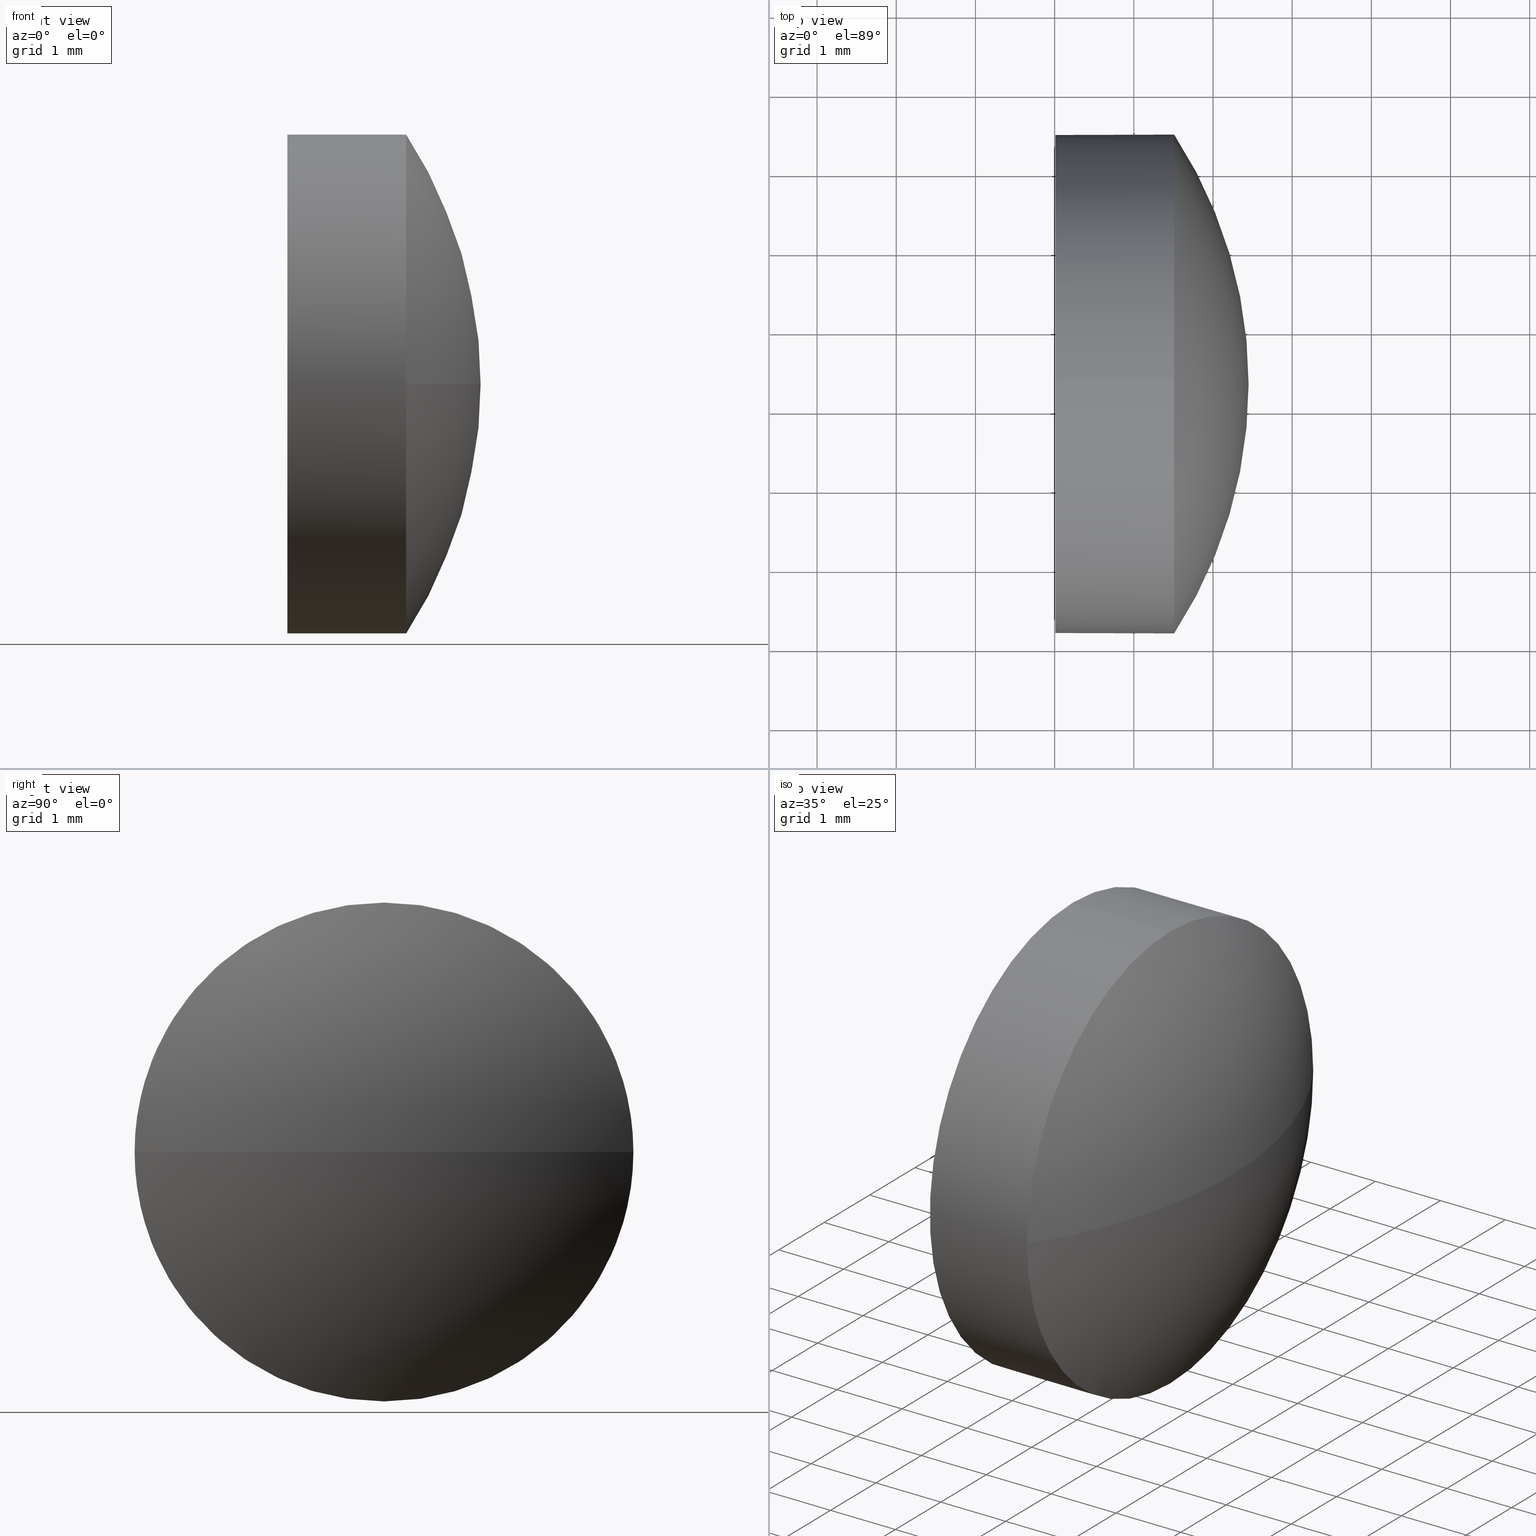
[diagram: canonical four-view strip — front | top / right | iso, engineering-drawing reading convention]
A machine part, canonical four-view strip (front | top / right | iso — engineering-drawing reading convention). The complete STEP part file that produces these views, byte-faithful:
ISO-10303-21;
HEADER;
FILE_DESCRIPTION (( 'STEP AP214' ),
    '1' );
FILE_NAME ('100350.STEP',
    '2019-06-03T03:22:07',
    ( '' ),
    ( '' ),
    'SwSTEP 2.0',
    'SolidWorks 2016',
    '' );
FILE_SCHEMA (( 'AUTOMOTIVE_DESIGN' ));
ENDSEC;

DATA;
#1 = MANIFOLD_SOLID_BREP ( '��ת2', #51 ) ;
#2 = AXIS2_PLACEMENT_3D ( 'NONE', #59, #117, #74 ) ;
#3 = SURFACE_SIDE_STYLE ('',( #111 ) ) ;
#4 = CARTESIAN_POINT ( 'NONE',  ( 419.5098370035601100, -21.67740160652397200, -3.149999999999999900 ) ) ;
#5 = VERTEX_POINT ( 'NONE', #22 ) ;
#6 = CARTESIAN_POINT ( 'NONE',  ( 418.0098370035601100, -21.67740160652397200, 3.149999999999999900 ) ) ;
#7 = ORIENTED_EDGE ( 'NONE', *, *, #37, .F. ) ;
#8 = CARTESIAN_POINT ( 'NONE',  ( 419.5098370035601100, -21.67740160652397200, 0.0000000000000000000 ) ) ;
#9 = SHAPE_DEFINITION_REPRESENTATION ( #54, #82 ) ;
#10 = CARTESIAN_POINT ( 'NONE',  ( 418.0098370035601100, -21.67740160652397200, -3.149999999999999900 ) ) ;
#11 = PRODUCT_CONTEXT ( 'NONE', #185, 'mechanical' ) ;
#12 = DIRECTION ( 'NONE',  ( 0.0000000000000000000, 0.0000000000000000000, 1.000000000000000000 ) ) ;
#13 = ORIENTED_EDGE ( 'NONE', *, *, #79, .T. ) ;
#14 = LINE ( 'NONE', #110, #163 ) ;
#15 = AXIS2_PLACEMENT_3D ( 'NONE', #26, #31, #116 ) ;
#16 = COLOUR_RGB ( '',1.000000000000000000, 1.000000000000000000, 1.000000000000000000 ) ;
#17 = EDGE_LOOP ( 'NONE', ( #60, #161, #169, #7 ) ) ;
#18 = CIRCLE ( 'NONE', #146, 3.149999999999999900 ) ;
#19 = EDGE_CURVE ( 'NONE', #40, #5, #149, .T. ) ;
#20 = AXIS2_PLACEMENT_3D ( 'NONE', #43, #147, #115 ) ;
#21 = FACE_OUTER_BOUND ( 'NONE', #29, .T. ) ;
#22 = CARTESIAN_POINT ( 'NONE',  ( 419.5098370035601100, -18.52740160652397700, 0.0000000000000000000 ) ) ;
#23 =( NAMED_UNIT ( * ) SI_UNIT ( $, .STERADIAN. ) SOLID_ANGLE_UNIT ( ) );
#24 =( LENGTH_UNIT ( ) NAMED_UNIT ( * ) SI_UNIT ( .MILLI., .METRE. ) );
#25 = CYLINDRICAL_SURFACE ( 'NONE', #126, 3.149999999999999900 ) ;
#26 = CARTESIAN_POINT ( 'NONE',  ( 418.0098370035601100, -21.67740160652397200, 0.0000000000000000000 ) ) ;
#27 = DIRECTION ( 'NONE',  ( 1.000000000000000000, 0.0000000000000000000, 0.0000000000000000000 ) ) ;
#28 = EDGE_CURVE ( 'NONE', #94, #36, #139, .T. ) ;
#29 = EDGE_LOOP ( 'NONE', ( #91, #13, #144, #128 ) ) ;
#30 = DIRECTION ( 'NONE',  ( 0.0000000000000000000, 0.0000000000000000000, 1.000000000000000000 ) ) ;
#31 = DIRECTION ( 'NONE',  ( 1.000000000000000000, 0.0000000000000000000, 0.0000000000000000000 ) ) ;
#32 = PRODUCT_RELATED_PRODUCT_CATEGORY ( 'part', '', ( #132 ) ) ;
#33 = MECHANICAL_DESIGN_GEOMETRIC_PRESENTATION_REPRESENTATION (  '', ( #171 ), #96 ) ;
#34 = ADVANCED_FACE ( 'NONE', ( #118 ), #55, .T. ) ;
#35 = LINE ( 'NONE', #89, #63 ) ;
#36 = VERTEX_POINT ( 'NONE', #6 ) ;
#37 = EDGE_CURVE ( 'NONE', #97, #107, #122, .T. ) ;
#38 = CARTESIAN_POINT ( 'NONE',  ( 418.0098370035601100, -21.67740160652397200, 0.0000000000000000000 ) ) ;
#39 =( NAMED_UNIT ( * ) PLANE_ANGLE_UNIT ( ) SI_UNIT ( $, .RADIAN. ) );
#40 = VERTEX_POINT ( 'NONE', #178 ) ;
#41 = CARTESIAN_POINT ( 'NONE',  ( 417.1491989148111100, -21.67740160652397200, 0.0000000000000000000 ) ) ;
#42 = CARTESIAN_POINT ( 'NONE',  ( 419.5098370035601100, -21.67740160652397200, 0.0000000000000000000 ) ) ;
#43 = CARTESIAN_POINT ( 'NONE',  ( 419.5098370035601100, -21.67740160652397200, 0.0000000000000000000 ) ) ;
#44 = DIRECTION ( 'NONE',  ( -1.000000000000000000, -0.0000000000000000000, -0.0000000000000000000 ) ) ;
#45 = SURFACE_STYLE_USAGE ( .BOTH. , #184 ) ;
#46 = EDGE_CURVE ( 'NONE', #107, #36, #14, .T. ) ;
#47 = ORIENTED_EDGE ( 'NONE', *, *, #95, .T. ) ;
#48 = CIRCLE ( 'NONE', #2, 5.747925531914894700 ) ;
#49 = EDGE_CURVE ( 'NONE', #36, #94, #18, .T. ) ;
#50 = ORIENTED_EDGE ( 'NONE', *, *, #46, .T. ) ;
#51 = CLOSED_SHELL ( 'NONE', ( #34, #162, #78, #124, #125 ) ) ;
#52 = EDGE_CURVE ( 'NONE', #107, #5, #176, .T. ) ;
#53 = DIRECTION ( 'NONE',  ( -1.000000000000000000, -0.0000000000000000000, -0.0000000000000000000 ) ) ;
#54 = PRODUCT_DEFINITION_SHAPE ( 'NONE', 'NONE',  #164 ) ;
#55 = CYLINDRICAL_SURFACE ( 'NONE', #150, 3.149999999999999900 ) ;
#56 = DIRECTION ( 'NONE',  ( 1.000000000000000000, 0.0000000000000000000, 0.0000000000000000000 ) ) ;
#57 = FACE_OUTER_BOUND ( 'NONE', #179, .T. ) ;
#58 = DIRECTION ( 'NONE',  ( -0.0000000000000000000, 0.0000000000000000000, -1.000000000000000000 ) ) ;
#59 = CARTESIAN_POINT ( 'NONE',  ( 414.7019114716451900, -21.67740160652399000, 0.0000000000000000000 ) ) ;
#60 = ORIENTED_EDGE ( 'NONE', *, *, #79, .F. ) ;
#61 = UNCERTAINTY_MEASURE_WITH_UNIT (LENGTH_MEASURE( 1.000000000000000100E-005 ), #70, 'distance_accuracy_value', 'NONE');
#62 = ORIENTED_EDGE ( 'NONE', *, *, #52, .T. ) ;
#63 = VECTOR ( 'NONE', #44, 1000.000000000000000 ) ;
#64 = PRODUCT_DEFINITION_FORMATION_WITH_SPECIFIED_SOURCE ( '�κ�', '', #132, .NOT_KNOWN. ) ;
#65 = ORIENTED_EDGE ( 'NONE', *, *, #130, .T. ) ;
#66 = SPHERICAL_SURFACE ( 'NONE', #121, 5.747925531914894700 ) ;
#67 = EDGE_CURVE ( 'NONE', #69, #97, #75, .T. ) ;
#68 = DIRECTION ( 'NONE',  ( -1.000000000000000000, -0.0000000000000000000, -0.0000000000000000000 ) ) ;
#69 = VERTEX_POINT ( 'NONE', #4 ) ;
#70 =( LENGTH_UNIT ( ) NAMED_UNIT ( * ) SI_UNIT ( .MILLI., .METRE. ) );
#71 = DIRECTION ( 'NONE',  ( 0.0000000000000000000, 0.0000000000000000000, 1.000000000000000000 ) ) ;
#72 = DIRECTION ( 'NONE',  ( -1.000000000000000000, -0.0000000000000000000, -0.0000000000000000000 ) ) ;
#73 =( LENGTH_UNIT ( ) NAMED_UNIT ( * ) SI_UNIT ( .MILLI., .METRE. ) );
#74 = DIRECTION ( 'NONE',  ( 0.0000000000000000000, 1.000000000000000000, 1.224646799147353500E-016 ) ) ;
#75 = CIRCLE ( 'NONE', #177, 3.149999999999999900 ) ;
#76 = DIRECTION ( 'NONE',  ( 0.0000000000000000000, 1.000000000000000000, 0.0000000000000000000 ) ) ;
#77 = CARTESIAN_POINT ( 'NONE',  ( 0.0000000000000000000, 0.0000000000000000000, 0.0000000000000000000 ) ) ;
#78 = ADVANCED_FACE ( 'NONE', ( #165 ), #105, .T. ) ;
#79 = EDGE_CURVE ( 'NONE', #40, #97, #48, .T. ) ;
#80 = PRODUCT_DEFINITION_CONTEXT ( 'detailed design', #101, 'design' ) ;
#81 = ORIENTED_EDGE ( 'NONE', *, *, #46, .F. ) ;
#82 = ADVANCED_BREP_SHAPE_REPRESENTATION ( '100350', ( #1, #174 ), #114 ) ;
#83 = DIRECTION ( 'NONE',  ( -0.0000000000000000000, 0.0000000000000000000, 1.000000000000000000 ) ) ;
#84 = DIRECTION ( 'NONE',  ( -1.000000000000000000, -0.0000000000000000000, -0.0000000000000000000 ) ) ;
#85 = DIRECTION ( 'NONE',  ( 0.0000000000000000000, 0.0000000000000000000, 1.000000000000000000 ) ) ;
#86 =( NAMED_UNIT ( * ) SI_UNIT ( $, .STERADIAN. ) SOLID_ANGLE_UNIT ( ) );
#87 = DIRECTION ( 'NONE',  ( -1.000000000000000000, -0.0000000000000000000, -0.0000000000000000000 ) ) ;
#88 = PRESENTATION_LAYER_ASSIGNMENT (  '', '', ( #171 ) ) ;
#89 = CARTESIAN_POINT ( 'NONE',  ( 417.1491989148111100, -21.67740160652397200, -3.149999999999999900 ) ) ;
#90 = ORIENTED_EDGE ( 'NONE', *, *, #28, .T. ) ;
#91 = ORIENTED_EDGE ( 'NONE', *, *, #19, .F. ) ;
#92 = AXIS2_PLACEMENT_3D ( 'NONE', #129, #83, #56 ) ;
#93 = SURFACE_STYLE_FILL_AREA ( #158 ) ;
#94 = VERTEX_POINT ( 'NONE', #10 ) ;
#95 = EDGE_CURVE ( 'NONE', #5, #69, #168, .T. ) ;
#96 =( GEOMETRIC_REPRESENTATION_CONTEXT ( 3 ) GLOBAL_UNCERTAINTY_ASSIGNED_CONTEXT ( ( #61 ) ) GLOBAL_UNIT_ASSIGNED_CONTEXT ( ( #70, #39, #23 ) ) REPRESENTATION_CONTEXT ( 'NONE', 'WORKASPACE' ) );
#97 = VERTEX_POINT ( 'NONE', #155 ) ;
#98 = EDGE_LOOP ( 'NONE', ( #47, #65, #186, #81, #62 ) ) ;
#99 = DIRECTION ( 'NONE',  ( -1.000000000000000000, -0.0000000000000000000, -0.0000000000000000000 ) ) ;
#100 = FILL_AREA_STYLE_COLOUR ( '', #113 ) ;
#101 = APPLICATION_CONTEXT ( 'automotive_design' ) ;
#102 = DIRECTION ( 'NONE',  ( 0.0000000000000000000, 1.000000000000000000, 0.0000000000000000000 ) ) ;
#103 = CARTESIAN_POINT ( 'NONE',  ( 417.1491989148111100, -21.67740160652397200, 0.0000000000000000000 ) ) ;
#104 = APPLICATION_PROTOCOL_DEFINITION ( 'draft international standard', 'automotive_design', 1998, #185 ) ;
#105 = SPHERICAL_SURFACE ( 'NONE', #106, 5.747925531914894700 ) ;
#106 = AXIS2_PLACEMENT_3D ( 'NONE', #166, #58, #76 ) ;
#107 = VERTEX_POINT ( 'NONE', #135 ) ;
#108 = MECHANICAL_DESIGN_GEOMETRIC_PRESENTATION_REPRESENTATION (  '', ( #154 ), #152 ) ;
#109 = FACE_OUTER_BOUND ( 'NONE', #134, .T. ) ;
#110 = CARTESIAN_POINT ( 'NONE',  ( 417.1491989148111100, -21.67740160652397200, 3.149999999999999900 ) ) ;
#111 = SURFACE_STYLE_FILL_AREA ( #153 ) ;
#112 = SURFACE_STYLE_USAGE ( .BOTH. , #3 ) ;
#113 = COLOUR_RGB ( '',1.000000000000000000, 1.000000000000000000, 1.000000000000000000 ) ;
#114 =( GEOMETRIC_REPRESENTATION_CONTEXT ( 3 ) GLOBAL_UNCERTAINTY_ASSIGNED_CONTEXT ( ( #136 ) ) GLOBAL_UNIT_ASSIGNED_CONTEXT ( ( #73, #182, #86 ) ) REPRESENTATION_CONTEXT ( 'NONE', 'WORKASPACE' ) );
#115 = DIRECTION ( 'NONE',  ( 0.0000000000000000000, 0.0000000000000000000, 1.000000000000000000 ) ) ;
#116 = DIRECTION ( 'NONE',  ( 0.0000000000000000000, 0.0000000000000000000, -1.000000000000000000 ) ) ;
#117 = DIRECTION ( 'NONE',  ( 0.0000000000000000000, 1.224646799147353200E-016, -1.000000000000000000 ) ) ;
#118 = FACE_OUTER_BOUND ( 'NONE', #98, .T. ) ;
#119 = AXIS2_PLACEMENT_3D ( 'NONE', #151, #84, #85 ) ;
#120 = ORIENTED_EDGE ( 'NONE', *, *, #49, .T. ) ;
#121 = AXIS2_PLACEMENT_3D ( 'NONE', #183, #145, #102 ) ;
#122 = CIRCLE ( 'NONE', #137, 3.149999999999999900 ) ;
#123 = ORIENTED_EDGE ( 'NONE', *, *, #67, .T. ) ;
#124 = ADVANCED_FACE ( 'NONE', ( #109 ), #25, .T. ) ;
#125 = ADVANCED_FACE ( 'NONE', ( #57 ), #156, .F. ) ;
#126 = AXIS2_PLACEMENT_3D ( 'NONE', #103, #87, #170 ) ;
#127 = DIRECTION ( 'NONE',  ( -1.000000000000000000, -0.0000000000000000000, -0.0000000000000000000 ) ) ;
#128 = ORIENTED_EDGE ( 'NONE', *, *, #95, .F. ) ;
#129 = CARTESIAN_POINT ( 'NONE',  ( 414.7019114716451900, -21.67740160652399000, 0.0000000000000000000 ) ) ;
#130 = EDGE_CURVE ( 'NONE', #69, #94, #35, .T. ) ;
#131 = FILL_AREA_STYLE_COLOUR ( '', #16 ) ;
#132 = PRODUCT ( '100350', '100350', '', ( #11 ) ) ;
#133 = APPLICATION_PROTOCOL_DEFINITION ( 'draft international standard', 'automotive_design', 1998, #101 ) ;
#134 = EDGE_LOOP ( 'NONE', ( #140, #123, #159, #50, #138 ) ) ;
#135 = CARTESIAN_POINT ( 'NONE',  ( 419.5098370035601100, -21.67740160652397200, 3.149999999999999900 ) ) ;
#136 = UNCERTAINTY_MEASURE_WITH_UNIT (LENGTH_MEASURE( 1.000000000000000100E-005 ), #73, 'distance_accuracy_value', 'NONE');
#137 = AXIS2_PLACEMENT_3D ( 'NONE', #42, #53, #71 ) ;
#138 = ORIENTED_EDGE ( 'NONE', *, *, #28, .F. ) ;
#139 = CIRCLE ( 'NONE', #119, 3.149999999999999900 ) ;
#140 = ORIENTED_EDGE ( 'NONE', *, *, #130, .F. ) ;
#141 = DIRECTION ( 'NONE',  ( 0.0000000000000000000, 0.0000000000000000000, 1.000000000000000000 ) ) ;
#142 = PRESENTATION_LAYER_ASSIGNMENT (  '', '', ( #154 ) ) ;
#143 =( NAMED_UNIT ( * ) PLANE_ANGLE_UNIT ( ) SI_UNIT ( $, .RADIAN. ) );
#144 = ORIENTED_EDGE ( 'NONE', *, *, #67, .F. ) ;
#145 = DIRECTION ( 'NONE',  ( -0.0000000000000000000, 0.0000000000000000000, -1.000000000000000000 ) ) ;
#146 = AXIS2_PLACEMENT_3D ( 'NONE', #38, #68, #175 ) ;
#147 = DIRECTION ( 'NONE',  ( -1.000000000000000000, -0.0000000000000000000, -0.0000000000000000000 ) ) ;
#148 = PRESENTATION_STYLE_ASSIGNMENT (( #45 ) ) ;
#149 = CIRCLE ( 'NONE', #92, 5.747925531914887600 ) ;
#150 = AXIS2_PLACEMENT_3D ( 'NONE', #41, #181, #141 ) ;
#151 = CARTESIAN_POINT ( 'NONE',  ( 418.0098370035601100, -21.67740160652397200, 0.0000000000000000000 ) ) ;
#152 =( GEOMETRIC_REPRESENTATION_CONTEXT ( 3 ) GLOBAL_UNCERTAINTY_ASSIGNED_CONTEXT ( ( #173 ) ) GLOBAL_UNIT_ASSIGNED_CONTEXT ( ( #24, #143, #172 ) ) REPRESENTATION_CONTEXT ( 'NONE', 'WORKASPACE' ) );
#153 = FILL_AREA_STYLE ('',( #100 ) ) ;
#154 = STYLED_ITEM ( 'NONE', ( #148 ), #82 ) ;
#155 = CARTESIAN_POINT ( 'NONE',  ( 419.5098370035601100, -24.82740160652398100, -3.857637417314154300E-016 ) ) ;
#156 = PLANE ( 'NONE',  #15 ) ;
#157 = DIRECTION ( 'NONE',  ( 0.0000000000000000000, 0.0000000000000000000, 1.000000000000000000 ) ) ;
#158 = FILL_AREA_STYLE ('',( #131 ) ) ;
#159 = ORIENTED_EDGE ( 'NONE', *, *, #37, .T. ) ;
#160 = AXIS2_PLACEMENT_3D ( 'NONE', #167, #127, #30 ) ;
#161 = ORIENTED_EDGE ( 'NONE', *, *, #19, .T. ) ;
#162 = ADVANCED_FACE ( 'NONE', ( #21 ), #66, .T. ) ;
#163 = VECTOR ( 'NONE', #99, 1000.000000000000000 ) ;
#164 = PRODUCT_DEFINITION ( 'δ֪', '', #64, #80 ) ;
#165 = FACE_OUTER_BOUND ( 'NONE', #17, .T. ) ;
#166 = CARTESIAN_POINT ( 'NONE',  ( 414.7019114716451900, -21.67740160652399000, 0.0000000000000000000 ) ) ;
#167 = CARTESIAN_POINT ( 'NONE',  ( 419.5098370035601100, -21.67740160652397200, 0.0000000000000000000 ) ) ;
#168 = CIRCLE ( 'NONE', #20, 3.149999999999999900 ) ;
#169 = ORIENTED_EDGE ( 'NONE', *, *, #52, .F. ) ;
#170 = DIRECTION ( 'NONE',  ( 0.0000000000000000000, 0.0000000000000000000, 1.000000000000000000 ) ) ;
#171 = STYLED_ITEM ( 'NONE', ( #180 ), #1 ) ;
#172 =( NAMED_UNIT ( * ) SI_UNIT ( $, .STERADIAN. ) SOLID_ANGLE_UNIT ( ) );
#173 = UNCERTAINTY_MEASURE_WITH_UNIT (LENGTH_MEASURE( 1.000000000000000100E-005 ), #24, 'distance_accuracy_value', 'NONE');
#174 = AXIS2_PLACEMENT_3D ( 'NONE', #77, #157, #27 ) ;
#175 = DIRECTION ( 'NONE',  ( 0.0000000000000000000, 0.0000000000000000000, 1.000000000000000000 ) ) ;
#176 = CIRCLE ( 'NONE', #160, 3.149999999999999900 ) ;
#177 = AXIS2_PLACEMENT_3D ( 'NONE', #8, #72, #12 ) ;
#178 = CARTESIAN_POINT ( 'NONE',  ( 420.4498370035601100, -21.67740160652399000, 0.0000000000000000000 ) ) ;
#179 = EDGE_LOOP ( 'NONE', ( #120, #90 ) ) ;
#180 = PRESENTATION_STYLE_ASSIGNMENT (( #112 ) ) ;
#181 = DIRECTION ( 'NONE',  ( -1.000000000000000000, -0.0000000000000000000, -0.0000000000000000000 ) ) ;
#182 =( NAMED_UNIT ( * ) PLANE_ANGLE_UNIT ( ) SI_UNIT ( $, .RADIAN. ) );
#183 = CARTESIAN_POINT ( 'NONE',  ( 414.7019114716451900, -21.67740160652399000, 0.0000000000000000000 ) ) ;
#184 = SURFACE_SIDE_STYLE ('',( #93 ) ) ;
#185 = APPLICATION_CONTEXT ( 'automotive_design' ) ;
#186 = ORIENTED_EDGE ( 'NONE', *, *, #49, .F. ) ;
ENDSEC;
END-ISO-10303-21;
